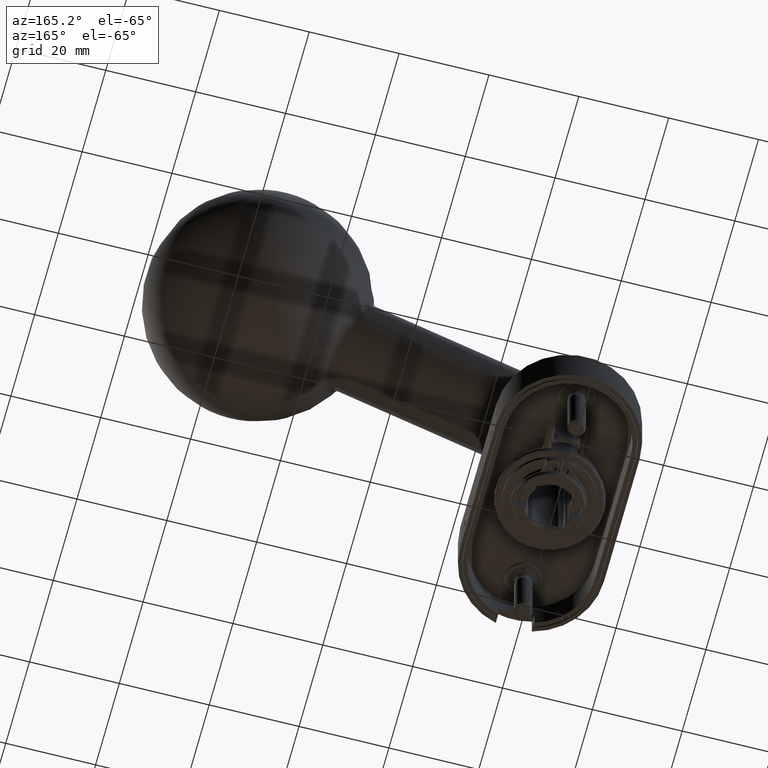
[diagram: clean part render]
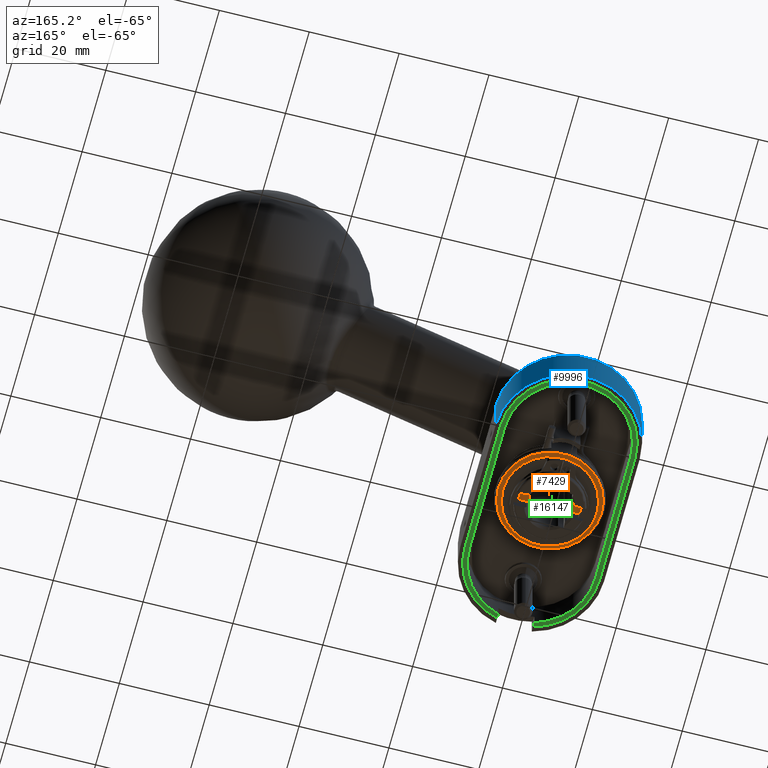
[diagram: same view with three faces highlighted in distinct colors, each labeled with its STEP entity id]
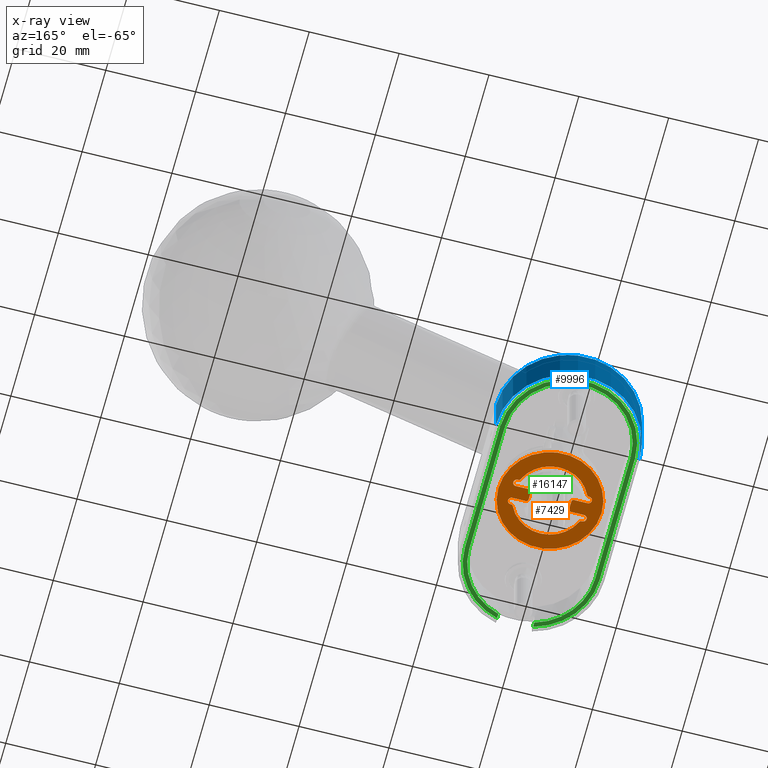
[diagram: x-ray of the same camera — body ghosted, the three highlighted faces saturated]
A machine part, auxiliary view with three faces highlighted in distinct colors.
The next image is the same camera in x-ray (body ghosted, the three faces saturated) — at least one of them is partly hidden behind the body in this view.
Their STEP definitions:

[orange] entity #7429 — the highlighted planar face has unit normal (0, 0, -1).
#11 = LINE ( 'NONE', #18576, #1583 ) ;
#185 = DIRECTION ( 'NONE',  ( 1.000000000000000000, 0.0000000000000000000, 0.0000000000000000000 ) ) ;
#356 = LINE ( 'NONE', #13812, #19565 ) ;
#502 = VERTEX_POINT ( 'NONE', #13792 ) ;
#853 = EDGE_CURVE ( 'NONE', #9252, #13674, #14266, .T. ) ;
#1027 = VECTOR ( 'NONE', #19170, 1000.000000000000000 ) ;
#1063 = CIRCLE ( 'NONE', #20202, 0.7808406967861397700 ) ;
#1136 = ORIENTED_EDGE ( 'NONE', *, *, #20974, .T. ) ;
#1216 = VERTEX_POINT ( 'NONE', #3565 ) ;
#1583 = VECTOR ( 'NONE', #8430, 1000.000000000000000 ) ;
#1642 = CARTESIAN_POINT ( 'NONE',  ( 7.396172484799129700, 3.302519125622178200, 0.9999999999999913400 ) ) ;
#2035 = CIRCLE ( 'NONE', #8360, 0.5000000000000004400 ) ;
#2041 = AXIS2_PLACEMENT_3D ( 'NONE', #17035, #6941, #8462 ) ;
#2171 = VERTEX_POINT ( 'NONE', #1642 ) ;
#2296 = DIRECTION ( 'NONE',  ( 1.000000000000000000, 0.0000000000000000000, 0.0000000000000000000 ) ) ;
#2337 = ORIENTED_EDGE ( 'NONE', *, *, #13989, .T. ) ;
#2384 = CARTESIAN_POINT ( 'NONE',  ( -7.852726341885496500, 3.506378330907501200, 0.9999999999999913400 ) ) ;
#2406 = ORIENTED_EDGE ( 'NONE', *, *, #7199, .T. ) ;
#2412 = CARTESIAN_POINT ( 'NONE',  ( 4.500000000000000900, 1.450000000000000000, 0.9999999999999913400 ) ) ;
#2679 = CARTESIAN_POINT ( 'NONE',  ( 7.898178114936007100, 3.008448480098607100, 0.9999999999999913400 ) ) ;
#2910 = CARTESIAN_POINT ( 'NONE',  ( 0.0000000000000000000, 0.0000000000000000000, 0.9999999999999913400 ) ) ;
#3014 = DIRECTION ( 'NONE',  ( -1.000000000000000000, 0.0000000000000000000, 0.0000000000000000000 ) ) ;
#3099 = CARTESIAN_POINT ( 'NONE',  ( -5.000000000000000900, 1.449999999999999700, 0.9999999999999913400 ) ) ;
#3175 = CARTESIAN_POINT ( 'NONE',  ( -5.000000000000000000, -1.450000000000000000, 0.9999999999999913400 ) ) ;
#3409 = ORIENTED_EDGE ( 'NONE', *, *, #7334, .F. ) ;
#3431 = VERTEX_POINT ( 'NONE', #16764 ) ;
#3564 = CIRCLE ( 'NONE', #7130, 0.5000000000000004400 ) ;
#3565 = CARTESIAN_POINT ( 'NONE',  ( 7.969159303213860600, 1.449999999999998400, 0.9999999999999913400 ) ) ;
#3684 = LINE ( 'NONE', #5823, #1027 ) ;
#3966 = VECTOR ( 'NONE', #14674, 1000.000000000000000 ) ;
#4085 = ORIENTED_EDGE ( 'NONE', *, *, #15269, .T. ) ;
#4426 = CIRCLE ( 'NONE', #11321, 0.4999999999999995600 ) ;
#4433 = EDGE_CURVE ( 'NONE', #3431, #9259, #15138, .T. ) ;
#4674 = CARTESIAN_POINT ( 'NONE',  ( -7.969159303213860600, 2.230840696786141800, 0.9999999999999913400 ) ) ;
#4681 = DIRECTION ( 'NONE',  ( -0.0000000000000000000, 0.0000000000000000000, 1.000000000000000000 ) ) ;
#4737 = ORIENTED_EDGE ( 'NONE', *, *, #12347, .F. ) ;
#4751 = CARTESIAN_POINT ( 'NONE',  ( 4.500000000000000000, -1.450000000000000000, 0.9999999999999913400 ) ) ;
#4856 = ORIENTED_EDGE ( 'NONE', *, *, #5453, .F. ) ;
#4873 = CARTESIAN_POINT ( 'NONE',  ( -7.969159303213858800, -1.450000000000001300, 0.9999999999999913400 ) ) ;
#4991 = ORIENTED_EDGE ( 'NONE', *, *, #12745, .F. ) ;
#5087 = VERTEX_POINT ( 'NONE', #21721 ) ;
#5349 = DIRECTION ( 'NONE',  ( -0.0000000000000000000, 0.0000000000000000000, 1.000000000000000000 ) ) ;
#5412 = VERTEX_POINT ( 'NONE', #10236 ) ;
#5415 = EDGE_CURVE ( 'NONE', #502, #13674, #16145, .T. ) ;
#5420 = DIRECTION ( 'NONE',  ( 1.000000000000000000, 0.0000000000000000000, 0.0000000000000000000 ) ) ;
#5453 = EDGE_CURVE ( 'NONE', #18020, #21527, #356, .T. ) ;
#5823 = CARTESIAN_POINT ( 'NONE',  ( 4.500000000000000900, 1.450000000000000000, 0.9999999999999913400 ) ) ;
#5921 = EDGE_CURVE ( 'NONE', #502, #17731, #20859, .T. ) ;
#6257 = DIRECTION ( 'NONE',  ( 0.0000000000000000000, 0.0000000000000000000, -1.000000000000000000 ) ) ;
#6378 = DIRECTION ( 'NONE',  ( -0.0000000000000000000, 0.0000000000000000000, 1.000000000000000000 ) ) ;
#6597 = CARTESIAN_POINT ( 'NONE',  ( 7.852726341885496500, 3.506378330907498500, 0.9999999999999913400 ) ) ;
#6613 = CARTESIAN_POINT ( 'NONE',  ( -4.500000000000000900, 1.450000000000000000, 0.9999999999999913400 ) ) ;
#6941 = DIRECTION ( 'NONE',  ( 0.0000000000000000000, 0.0000000000000000000, -1.000000000000000000 ) ) ;
#7013 = ORIENTED_EDGE ( 'NONE', *, *, #12716, .T. ) ;
#7130 = AXIS2_PLACEMENT_3D ( 'NONE', #13095, #8075, #18347 ) ;
#7199 = EDGE_CURVE ( 'NONE', #20605, #9252, #11607, .T. ) ;
#7206 = DIRECTION ( 'NONE',  ( -0.0000000000000000000, 0.0000000000000000000, 1.000000000000000000 ) ) ;
#7334 = EDGE_CURVE ( 'NONE', #20605, #13653, #13969, .T. ) ;
#7336 = CARTESIAN_POINT ( 'NONE',  ( -7.396172484799128800, 3.302519125622181300, 0.9999999999999913400 ) ) ;
#7429 = ADVANCED_FACE ( 'NONE', ( #21363, #21645 ), #19919, .T. ) ;
#7448 = EDGE_CURVE ( 'NONE', #21789, #21789, #11587, .T. ) ;
#7548 = EDGE_CURVE ( 'NONE', #2171, #18446, #17393, .T. ) ;
#7942 = DIRECTION ( 'NONE',  ( 1.000000000000000000, 0.0000000000000000000, -0.0000000000000000000 ) ) ;
#8001 = ORIENTED_EDGE ( 'NONE', *, *, #9039, .T. ) ;
#8075 = DIRECTION ( 'NONE',  ( -0.0000000000000000000, 0.0000000000000000000, 1.000000000000000000 ) ) ;
#8252 = CARTESIAN_POINT ( 'NONE',  ( 7.969159303213860600, -2.230840696786139200, 0.9999999999999913400 ) ) ;
#8360 = AXIS2_PLACEMENT_3D ( 'NONE', #8836, #15581, #5420 ) ;
#8430 = DIRECTION ( 'NONE',  ( 2.990902544787598600E-016, -1.000000000000000000, -0.0000000000000000000 ) ) ;
#8462 = DIRECTION ( 'NONE',  ( 1.000000000000000000, 0.0000000000000000000, 0.0000000000000000000 ) ) ;
#8598 = CIRCLE ( 'NONE', #9107, 0.7808406967861423200 ) ;
#8696 = AXIS2_PLACEMENT_3D ( 'NONE', #8252, #9722, #21616 ) ;
#8728 = DIRECTION ( 'NONE',  ( -0.0000000000000000000, 0.0000000000000000000, 1.000000000000000000 ) ) ;
#8770 = AXIS2_PLACEMENT_3D ( 'NONE', #20844, #7206, #2296 ) ;
#8836 = CARTESIAN_POINT ( 'NONE',  ( -5.000000000000000900, 0.9499999999999996200, 0.9999999999999913400 ) ) ;
#8849 = CIRCLE ( 'NONE', #8770, 8.100000000000001400 ) ;
#8940 = CARTESIAN_POINT ( 'NONE',  ( 7.969159303213858800, -1.450000000000000600, 0.9999999999999913400 ) ) ;
#8947 = ORIENTED_EDGE ( 'NONE', *, *, #7448, .T. ) ;
#9039 = EDGE_CURVE ( 'NONE', #17731, #21527, #1063, .T. ) ;
#9107 = AXIS2_PLACEMENT_3D ( 'NONE', #4674, #6257, #9615 ) ;
#9124 = DIRECTION ( 'NONE',  ( 1.000000000000000000, 0.0000000000000000000, 0.0000000000000000000 ) ) ;
#9252 = VERTEX_POINT ( 'NONE', #9734 ) ;
#9259 = VERTEX_POINT ( 'NONE', #3099 ) ;
#9615 = DIRECTION ( 'NONE',  ( -1.000000000000000000, 0.0000000000000000000, 0.0000000000000000000 ) ) ;
#9722 = DIRECTION ( 'NONE',  ( 0.0000000000000000000, 0.0000000000000000000, -1.000000000000000000 ) ) ;
#9734 = CARTESIAN_POINT ( 'NONE',  ( 7.898178114936007100, -3.008448480098607100, 0.9999999999999913400 ) ) ;
#9772 = DIRECTION ( 'NONE',  ( 1.000000000000000000, 0.0000000000000000000, 0.0000000000000000000 ) ) ;
#10236 = CARTESIAN_POINT ( 'NONE',  ( 5.000000000000000900, 1.449999999999999700, 0.9999999999999913400 ) ) ;
#10237 = CARTESIAN_POINT ( 'NONE',  ( -5.000000000000000000, -0.9499999999999996200, 0.9999999999999913400 ) ) ;
#10724 = CARTESIAN_POINT ( 'NONE',  ( 11.50000000000000200, 0.0000000000000000000, 0.9999999999999913400 ) ) ;
#10766 = DIRECTION ( 'NONE',  ( 1.000000000000000000, 0.0000000000000000000, 0.0000000000000000000 ) ) ;
#10952 = CIRCLE ( 'NONE', #2041, 0.7808406967861405400 ) ;
#11047 = AXIS2_PLACEMENT_3D ( 'NONE', #2384, #12662, #12744 ) ;
#11137 = CARTESIAN_POINT ( 'NONE',  ( 5.000000000000000000, -1.450000000000000000, 0.9999999999999913400 ) ) ;
#11290 = CARTESIAN_POINT ( 'NONE',  ( -4.500000000000000900, 0.9499999999999997300, 0.9999999999999913400 ) ) ;
#11321 = AXIS2_PLACEMENT_3D ( 'NONE', #10237, #5349, #12089 ) ;
#11366 = EDGE_CURVE ( 'NONE', #21430, #12872, #11, .T. ) ;
#11469 = CIRCLE ( 'NONE', #11047, 0.5000000000000013300 ) ;
#11562 = ORIENTED_EDGE ( 'NONE', *, *, #853, .T. ) ;
#11587 = CIRCLE ( 'NONE', #18499, 11.50000000000000200 ) ;
#11607 = CIRCLE ( 'NONE', #8696, 0.7808406967861397700 ) ;
#11620 = EDGE_LOOP ( 'NONE', ( #4856, #4085, #14751, #2337, #13798, #1136, #14116, #4991, #19123, #7013, #4737, #13750, #18799, #20531, #3409, #2406, #11562, #20186, #17423, #8001 ) ) ;
#11795 = VERTEX_POINT ( 'NONE', #16424 ) ;
#12089 = DIRECTION ( 'NONE',  ( 1.000000000000000000, 0.0000000000000000000, 0.0000000000000000000 ) ) ;
#12347 = EDGE_CURVE ( 'NONE', #5412, #1216, #3684, .T. ) ;
#12491 = CARTESIAN_POINT ( 'NONE',  ( 7.852726341885496500, -3.506378330907498500, 0.9999999999999913400 ) ) ;
#12662 = DIRECTION ( 'NONE',  ( -0.0000000000000000000, 0.0000000000000000000, 1.000000000000000000 ) ) ;
#12716 = EDGE_CURVE ( 'NONE', #18446, #1216, #10952, .T. ) ;
#12744 = DIRECTION ( 'NONE',  ( 1.000000000000000000, 0.0000000000000000000, 0.0000000000000000000 ) ) ;
#12745 = EDGE_CURVE ( 'NONE', #2171, #12747, #8849, .T. ) ;
#12747 = VERTEX_POINT ( 'NONE', #7336 ) ;
#12872 = VERTEX_POINT ( 'NONE', #19088 ) ;
#13095 = CARTESIAN_POINT ( 'NONE',  ( 5.000000000000000900, 0.9499999999999996200, 0.9999999999999913400 ) ) ;
#13325 = EDGE_CURVE ( 'NONE', #16912, #13653, #18126, .T. ) ;
#13328 = AXIS2_PLACEMENT_3D ( 'NONE', #18509, #16740, #185 ) ;
#13371 = CARTESIAN_POINT ( 'NONE',  ( 4.500000000000000000, -0.9499999999999998400, 0.9999999999999913400 ) ) ;
#13653 = VERTEX_POINT ( 'NONE', #11137 ) ;
#13674 = VERTEX_POINT ( 'NONE', #16362 ) ;
#13750 = ORIENTED_EDGE ( 'NONE', *, *, #19034, .T. ) ;
#13792 = CARTESIAN_POINT ( 'NONE',  ( -7.396172484799130600, -3.302519125622175100, 0.9999999999999913400 ) ) ;
#13798 = ORIENTED_EDGE ( 'NONE', *, *, #4433, .F. ) ;
#13812 = CARTESIAN_POINT ( 'NONE',  ( -4.500000000000000000, -1.450000000000000000, 0.9999999999999913400 ) ) ;
#13969 = LINE ( 'NONE', #4751, #3966 ) ;
#13989 = EDGE_CURVE ( 'NONE', #21430, #9259, #2035, .T. ) ;
#14116 = ORIENTED_EDGE ( 'NONE', *, *, #16279, .T. ) ;
#14266 = CIRCLE ( 'NONE', #19857, 0.5000000000000004400 ) ;
#14674 = DIRECTION ( 'NONE',  ( -1.000000000000000000, 1.875155467460529500E-016, 0.0000000000000000000 ) ) ;
#14751 = ORIENTED_EDGE ( 'NONE', *, *, #11366, .F. ) ;
#14877 = DIRECTION ( 'NONE',  ( -1.000000000000000000, 0.0000000000000000000, 0.0000000000000000000 ) ) ;
#15138 = LINE ( 'NONE', #6613, #19068 ) ;
#15269 = EDGE_CURVE ( 'NONE', #18020, #12872, #4426, .T. ) ;
#15372 = DIRECTION ( 'NONE',  ( -0.0000000000000000000, 0.0000000000000000000, 1.000000000000000000 ) ) ;
#15581 = DIRECTION ( 'NONE',  ( -0.0000000000000000000, 0.0000000000000000000, 1.000000000000000000 ) ) ;
#15955 = CARTESIAN_POINT ( 'NONE',  ( -7.969159303213860600, -2.230840696786136500, 0.9999999999999913400 ) ) ;
#15965 = EDGE_CURVE ( 'NONE', #16912, #5087, #21526, .T. ) ;
#16040 = DIRECTION ( 'NONE',  ( 2.990902544787598600E-016, 1.000000000000000000, 0.0000000000000000000 ) ) ;
#16062 = AXIS2_PLACEMENT_3D ( 'NONE', #16256, #18235, #3014 ) ;
#16145 = CIRCLE ( 'NONE', #20176, 8.099999999999999600 ) ;
#16193 = EDGE_LOOP ( 'NONE', ( #8947 ) ) ;
#16256 = CARTESIAN_POINT ( 'NONE',  ( -7.852726341885496500, -3.506378330907495800, 0.9999999999999913400 ) ) ;
#16279 = EDGE_CURVE ( 'NONE', #11795, #12747, #11469, .T. ) ;
#16362 = CARTESIAN_POINT ( 'NONE',  ( 7.396172484799129700, -3.302519125622178200, 0.9999999999999913400 ) ) ;
#16424 = CARTESIAN_POINT ( 'NONE',  ( -7.898178114936007100, 3.008448480098611100, 0.9999999999999913400 ) ) ;
#16740 = DIRECTION ( 'NONE',  ( -0.0000000000000000000, 0.0000000000000000000, 1.000000000000000000 ) ) ;
#16764 = CARTESIAN_POINT ( 'NONE',  ( -7.969159303213860600, 1.449999999999998400, 0.9999999999999913400 ) ) ;
#16912 = VERTEX_POINT ( 'NONE', #13371 ) ;
#17035 = CARTESIAN_POINT ( 'NONE',  ( 7.969159303213860600, 2.230840696786139200, 0.9999999999999913400 ) ) ;
#17393 = CIRCLE ( 'NONE', #20733, 0.5000000000000004400 ) ;
#17423 = ORIENTED_EDGE ( 'NONE', *, *, #5921, .T. ) ;
#17731 = VERTEX_POINT ( 'NONE', #19653 ) ;
#17793 = DIRECTION ( 'NONE',  ( 0.0000000000000000000, 0.0000000000000000000, -1.000000000000000000 ) ) ;
#17983 = DIRECTION ( 'NONE',  ( 0.0000000000000000000, 0.0000000000000000000, 1.000000000000000000 ) ) ;
#18020 = VERTEX_POINT ( 'NONE', #3175 ) ;
#18064 = CARTESIAN_POINT ( 'NONE',  ( 0.0000000000000000000, 0.0000000000000000000, 0.9999999999999913400 ) ) ;
#18101 = VECTOR ( 'NONE', #16040, 1000.000000000000000 ) ;
#18126 = CIRCLE ( 'NONE', #13328, 0.4999999999999995600 ) ;
#18235 = DIRECTION ( 'NONE',  ( -0.0000000000000000000, 0.0000000000000000000, 1.000000000000000000 ) ) ;
#18347 = DIRECTION ( 'NONE',  ( 1.000000000000000000, 0.0000000000000000000, 0.0000000000000000000 ) ) ;
#18446 = VERTEX_POINT ( 'NONE', #2679 ) ;
#18499 = AXIS2_PLACEMENT_3D ( 'NONE', #2910, #4681, #9772 ) ;
#18509 = CARTESIAN_POINT ( 'NONE',  ( 5.000000000000000000, -0.9499999999999999600, 0.9999999999999913400 ) ) ;
#18554 = CARTESIAN_POINT ( 'NONE',  ( 0.0000000000000000000, 0.0000000000000000000, 0.9999999999999913400 ) ) ;
#18576 = CARTESIAN_POINT ( 'NONE',  ( -4.500000000000000900, 1.450000000000000000, 0.9999999999999913400 ) ) ;
#18703 = DIRECTION ( 'NONE',  ( 1.000000000000000000, 4.375362757407899800E-016, 0.0000000000000000000 ) ) ;
#18758 = DIRECTION ( 'NONE',  ( 1.000000000000000000, 0.0000000000000000000, 0.0000000000000000000 ) ) ;
#18799 = ORIENTED_EDGE ( 'NONE', *, *, #15965, .F. ) ;
#18839 = DIRECTION ( 'NONE',  ( -1.000000000000000000, -1.875155467460529500E-016, 0.0000000000000000000 ) ) ;
#19034 = EDGE_CURVE ( 'NONE', #5412, #5087, #3564, .T. ) ;
#19068 = VECTOR ( 'NONE', #18703, 1000.000000000000000 ) ;
#19088 = CARTESIAN_POINT ( 'NONE',  ( -4.500000000000000000, -0.9499999999999995100, 0.9999999999999913400 ) ) ;
#19123 = ORIENTED_EDGE ( 'NONE', *, *, #7548, .T. ) ;
#19170 = DIRECTION ( 'NONE',  ( 1.000000000000000000, -4.375362757407899800E-016, -0.0000000000000000000 ) ) ;
#19565 = VECTOR ( 'NONE', #18839, 1000.000000000000000 ) ;
#19653 = CARTESIAN_POINT ( 'NONE',  ( -7.898178114936007100, -3.008448480098604900, 0.9999999999999913400 ) ) ;
#19857 = AXIS2_PLACEMENT_3D ( 'NONE', #12491, #8728, #10766 ) ;
#19919 = PLANE ( 'NONE',  #21591 ) ;
#20176 = AXIS2_PLACEMENT_3D ( 'NONE', #18554, #15372, #18758 ) ;
#20186 = ORIENTED_EDGE ( 'NONE', *, *, #5415, .F. ) ;
#20202 = AXIS2_PLACEMENT_3D ( 'NONE', #15955, #17793, #9124 ) ;
#20531 = ORIENTED_EDGE ( 'NONE', *, *, #13325, .T. ) ;
#20605 = VERTEX_POINT ( 'NONE', #8940 ) ;
#20733 = AXIS2_PLACEMENT_3D ( 'NONE', #6597, #6378, #14877 ) ;
#20844 = CARTESIAN_POINT ( 'NONE',  ( 0.0000000000000000000, 0.0000000000000000000, 0.9999999999999913400 ) ) ;
#20859 = CIRCLE ( 'NONE', #16062, 0.5000000000000004400 ) ;
#20974 = EDGE_CURVE ( 'NONE', #3431, #11795, #8598, .T. ) ;
#21363 = FACE_BOUND ( 'NONE', #11620, .T. ) ;
#21430 = VERTEX_POINT ( 'NONE', #11290 ) ;
#21526 = LINE ( 'NONE', #2412, #18101 ) ;
#21527 = VERTEX_POINT ( 'NONE', #4873 ) ;
#21591 = AXIS2_PLACEMENT_3D ( 'NONE', #18064, #17983, #7942 ) ;
#21616 = DIRECTION ( 'NONE',  ( -1.000000000000000000, 0.0000000000000000000, 0.0000000000000000000 ) ) ;
#21645 = FACE_OUTER_BOUND ( 'NONE', #16193, .T. ) ;
#21721 = CARTESIAN_POINT ( 'NONE',  ( 4.500000000000000900, 0.9499999999999997300, 0.9999999999999913400 ) ) ;
#21789 = VERTEX_POINT ( 'NONE', #10724 ) ;

[blue] entity #9996 — the highlighted cylindrical surface (partial cylindrical patch) has radius 16 mm, axis along (0, 0, 1).
#123 = CARTESIAN_POINT ( 'NONE',  ( -4.400605526280645800E-015, 14.99999999999999600, -0.5000000000000004400 ) ) ;
#658 = CARTESIAN_POINT ( 'NONE',  ( -16.00000000000001400, 14.99999999999998400, -10.49999999999999500 ) ) ;
#739 = DIRECTION ( 'NONE',  ( 1.000000000000000000, 0.0000000000000000000, 0.0000000000000000000 ) ) ;
#875 = AXIS2_PLACEMENT_3D ( 'NONE', #123, #13700, #10207 ) ;
#1030 = CARTESIAN_POINT ( 'NONE',  ( 16.00000000000001400, 14.99999999999998800, -0.5000000000000004400 ) ) ;
#1568 = AXIS2_PLACEMENT_3D ( 'NONE', #4117, #19201, #739 ) ;
#3483 = ORIENTED_EDGE ( 'NONE', *, *, #11500, .F. ) ;
#3726 = FACE_OUTER_BOUND ( 'NONE', #11439, .T. ) ;
#4117 = CARTESIAN_POINT ( 'NONE',  ( -4.400605526280645800E-015, 14.99999999999999600, -10.49999999999999500 ) ) ;
#4965 = DIRECTION ( 'NONE',  ( 1.000000000000000000, 0.0000000000000000000, 0.0000000000000000000 ) ) ;
#5759 = VECTOR ( 'NONE', #12603, 1000.000000000000000 ) ;
#6593 = EDGE_CURVE ( 'NONE', #16660, #7822, #7914, .T. ) ;
#7327 = LINE ( 'NONE', #658, #5759 ) ;
#7383 = ORIENTED_EDGE ( 'NONE', *, *, #10349, .T. ) ;
#7707 = VERTEX_POINT ( 'NONE', #15504 ) ;
#7822 = VERTEX_POINT ( 'NONE', #17917 ) ;
#7914 = CIRCLE ( 'NONE', #1568, 16.00000000000001400 ) ;
#9996 = ADVANCED_FACE ( 'NONE', ( #3726 ), #20043, .T. ) ;
#10207 = DIRECTION ( 'NONE',  ( 1.000000000000000000, 0.0000000000000000000, 0.0000000000000000000 ) ) ;
#10232 = VERTEX_POINT ( 'NONE', #1030 ) ;
#10349 = EDGE_CURVE ( 'NONE', #7707, #10232, #15550, .T. ) ;
#10704 = LINE ( 'NONE', #15528, #20022 ) ;
#10851 = ORIENTED_EDGE ( 'NONE', *, *, #6593, .T. ) ;
#10860 = CARTESIAN_POINT ( 'NONE',  ( 16.00000000000001400, 14.99999999999998800, -10.49999999999999500 ) ) ;
#11011 = EDGE_CURVE ( 'NONE', #7822, #7707, #7327, .T. ) ;
#11180 = ORIENTED_EDGE ( 'NONE', *, *, #11011, .T. ) ;
#11439 = EDGE_LOOP ( 'NONE', ( #11180, #7383, #3483, #10851 ) ) ;
#11500 = EDGE_CURVE ( 'NONE', #16660, #10232, #10704, .T. ) ;
#12177 = DIRECTION ( 'NONE',  ( 0.0000000000000000000, 0.0000000000000000000, 1.000000000000000000 ) ) ;
#12603 = DIRECTION ( 'NONE',  ( 0.0000000000000000000, 0.0000000000000000000, 1.000000000000000000 ) ) ;
#13700 = DIRECTION ( 'NONE',  ( -0.0000000000000000000, -0.0000000000000000000, -1.000000000000000000 ) ) ;
#15052 = DIRECTION ( 'NONE',  ( 0.0000000000000000000, 0.0000000000000000000, 1.000000000000000000 ) ) ;
#15504 = CARTESIAN_POINT ( 'NONE',  ( -16.00000000000001400, 14.99999999999998400, -0.5000000000000004400 ) ) ;
#15528 = CARTESIAN_POINT ( 'NONE',  ( 16.00000000000001400, 14.99999999999998800, -10.49999999999999500 ) ) ;
#15550 = CIRCLE ( 'NONE', #875, 16.00000000000001400 ) ;
#16660 = VERTEX_POINT ( 'NONE', #10860 ) ;
#17917 = CARTESIAN_POINT ( 'NONE',  ( -16.00000000000001400, 14.99999999999998400, -10.49999999999999500 ) ) ;
#18297 = CARTESIAN_POINT ( 'NONE',  ( -4.400605526280645800E-015, 14.99999999999999600, -10.49999999999999500 ) ) ;
#19201 = DIRECTION ( 'NONE',  ( 0.0000000000000000000, 0.0000000000000000000, 1.000000000000000000 ) ) ;
#20022 = VECTOR ( 'NONE', #12177, 1000.000000000000000 ) ;
#20043 = CYLINDRICAL_SURFACE ( 'NONE', #21621, 16.00000000000001400 ) ;
#21621 = AXIS2_PLACEMENT_3D ( 'NONE', #18297, #15052, #4965 ) ;

[green] entity #16147 — the highlighted planar face has unit normal (0, 0, -1).
#7 = LINE ( 'NONE', #21190, #17127 ) ;
#47 = LINE ( 'NONE', #6553, #548 ) ;
#331 = ORIENTED_EDGE ( 'NONE', *, *, #959, .T. ) ;
#548 = VECTOR ( 'NONE', #20261, 1000.000000000000000 ) ;
#654 = DIRECTION ( 'NONE',  ( 0.0000000000000000000, 0.0000000000000000000, 1.000000000000000000 ) ) ;
#746 = LINE ( 'NONE', #11559, #10680 ) ;
#934 = ORIENTED_EDGE ( 'NONE', *, *, #2193, .T. ) ;
#959 = EDGE_CURVE ( 'NONE', #8165, #17325, #17406, .T. ) ;
#1052 = VERTEX_POINT ( 'NONE', #8959 ) ;
#1242 = LINE ( 'NONE', #4893, #8571 ) ;
#1268 = DIRECTION ( 'NONE',  ( -1.000000000000000000, 0.0000000000000000000, 0.0000000000000000000 ) ) ;
#1799 = CARTESIAN_POINT ( 'NONE',  ( -4.000000000000000000, -28.31640786499874500, 0.0000000000000000000 ) ) ;
#2144 = VECTOR ( 'NONE', #17326, 1000.000000000000000 ) ;
#2193 = EDGE_CURVE ( 'NONE', #10761, #3975, #47, .T. ) ;
#2217 = CIRCLE ( 'NONE', #13093, 14.00000000000000500 ) ;
#2621 = AXIS2_PLACEMENT_3D ( 'NONE', #3358, #9852, #9699 ) ;
#2743 = VERTEX_POINT ( 'NONE', #8866 ) ;
#2802 = DIRECTION ( 'NONE',  ( -0.0000000000000000000, 1.000000000000000000, -0.0000000000000000000 ) ) ;
#3358 = CARTESIAN_POINT ( 'NONE',  ( 1.734723475976807100E-015, 14.90000000000000000, 0.0000000000000000000 ) ) ;
#3811 = ORIENTED_EDGE ( 'NONE', *, *, #7259, .F. ) ;
#3844 = VERTEX_POINT ( 'NONE', #17903 ) ;
#3975 = VERTEX_POINT ( 'NONE', #6495 ) ;
#4039 = ORIENTED_EDGE ( 'NONE', *, *, #9082, .F. ) ;
#4166 = CARTESIAN_POINT ( 'NONE',  ( 15.00000000000000700, 14.90000000000000200, 0.0000000000000000000 ) ) ;
#4245 = DIRECTION ( 'NONE',  ( -1.000000000000000000, 0.0000000000000000000, 0.0000000000000000000 ) ) ;
#4375 = EDGE_CURVE ( 'NONE', #7473, #8165, #2217, .T. ) ;
#4676 = AXIS2_PLACEMENT_3D ( 'NONE', #12940, #21350, #19815 ) ;
#4772 = CARTESIAN_POINT ( 'NONE',  ( 15.00000000000000500, 14.89999999999999900, 0.0000000000000000000 ) ) ;
#4893 = CARTESIAN_POINT ( 'NONE',  ( -15.00000000000000500, -14.89999999999999900, 0.0000000000000000000 ) ) ;
#4949 = DIRECTION ( 'NONE',  ( 0.0000000000000000000, 0.0000000000000000000, 1.000000000000000000 ) ) ;
#4963 = CIRCLE ( 'NONE', #19257, 14.00000000000000500 ) ;
#5447 = AXIS2_PLACEMENT_3D ( 'NONE', #13808, #5684, #7510 ) ;
#5472 = CARTESIAN_POINT ( 'NONE',  ( 14.00000000000000500, -14.90000000000000000, 0.0000000000000000000 ) ) ;
#5683 = EDGE_LOOP ( 'NONE', ( #16980, #4039, #19828, #13691, #3811, #11640, #20249, #13334, #331, #13942, #934, #20300 ) ) ;
#5684 = DIRECTION ( 'NONE',  ( -0.0000000000000000000, 0.0000000000000000000, -1.000000000000000000 ) ) ;
#5734 = VERTEX_POINT ( 'NONE', #4166 ) ;
#6495 = CARTESIAN_POINT ( 'NONE',  ( -14.00000000000000400, -14.89999999999999900, 0.0000000000000000000 ) ) ;
#6553 = CARTESIAN_POINT ( 'NONE',  ( -14.00000000000000500, -14.90000000000000000, 0.0000000000000000000 ) ) ;
#7259 = EDGE_CURVE ( 'NONE', #3844, #5734, #7627, .T. ) ;
#7473 = VERTEX_POINT ( 'NONE', #11578 ) ;
#7510 = DIRECTION ( 'NONE',  ( -1.000000000000000000, 0.0000000000000000000, 0.0000000000000000000 ) ) ;
#7627 = LINE ( 'NONE', #4772, #17141 ) ;
#7800 = CIRCLE ( 'NONE', #4676, 15.00000000000000500 ) ;
#7959 = VERTEX_POINT ( 'NONE', #1799 ) ;
#8165 = VERTEX_POINT ( 'NONE', #13628 ) ;
#8571 = VECTOR ( 'NONE', #18143, 1000.000000000000000 ) ;
#8655 = CIRCLE ( 'NONE', #10800, 15.00000000000000500 ) ;
#8866 = CARTESIAN_POINT ( 'NONE',  ( 4.000000000000000000, -29.35683229480096700, 0.0000000000000000000 ) ) ;
#8959 = CARTESIAN_POINT ( 'NONE',  ( -15.00000000000000500, 14.89999999999999900, 0.0000000000000000000 ) ) ;
#9082 = EDGE_CURVE ( 'NONE', #16939, #17707, #8655, .T. ) ;
#9699 = DIRECTION ( 'NONE',  ( -1.000000000000000000, 0.0000000000000000000, 0.0000000000000000000 ) ) ;
#9794 = DIRECTION ( 'NONE',  ( -0.0000000000000000000, 1.000000000000000000, -0.0000000000000000000 ) ) ;
#9852 = DIRECTION ( 'NONE',  ( 0.0000000000000000000, 0.0000000000000000000, 1.000000000000000000 ) ) ;
#10221 = EDGE_CURVE ( 'NONE', #2743, #7473, #7, .T. ) ;
#10269 = AXIS2_PLACEMENT_3D ( 'NONE', #13246, #11384, #1268 ) ;
#10387 = CARTESIAN_POINT ( 'NONE',  ( 1.734723475976807100E-015, 14.90000000000000000, 0.0000000000000000000 ) ) ;
#10680 = VECTOR ( 'NONE', #9794, 1000.000000000000000 ) ;
#10707 = EDGE_CURVE ( 'NONE', #3975, #7959, #12073, .T. ) ;
#10761 = VERTEX_POINT ( 'NONE', #18131 ) ;
#10800 = AXIS2_PLACEMENT_3D ( 'NONE', #15871, #654, #4245 ) ;
#11384 = DIRECTION ( 'NONE',  ( 0.0000000000000000000, 0.0000000000000000000, 1.000000000000000000 ) ) ;
#11559 = CARTESIAN_POINT ( 'NONE',  ( -4.000000000000000000, -29.90000000000000200, 0.0000000000000000000 ) ) ;
#11578 = CARTESIAN_POINT ( 'NONE',  ( 4.000000000000000000, -28.31640786499874500, 0.0000000000000000000 ) ) ;
#11640 = ORIENTED_EDGE ( 'NONE', *, *, #21405, .F. ) ;
#12073 = CIRCLE ( 'NONE', #10269, 14.00000000000000500 ) ;
#12924 = CARTESIAN_POINT ( 'NONE',  ( -4.000000000000000000, -29.35683229480096300, 0.0000000000000000000 ) ) ;
#12940 = CARTESIAN_POINT ( 'NONE',  ( 1.734723475976807100E-015, -14.90000000000000000, 0.0000000000000000000 ) ) ;
#13078 = FACE_OUTER_BOUND ( 'NONE', #5683, .T. ) ;
#13093 = AXIS2_PLACEMENT_3D ( 'NONE', #19968, #4949, #18050 ) ;
#13246 = CARTESIAN_POINT ( 'NONE',  ( 1.734723475976807100E-015, -14.90000000000000000, 0.0000000000000000000 ) ) ;
#13334 = ORIENTED_EDGE ( 'NONE', *, *, #4375, .T. ) ;
#13628 = CARTESIAN_POINT ( 'NONE',  ( 14.00000000000000500, -14.89999999999999900, 0.0000000000000000000 ) ) ;
#13691 = ORIENTED_EDGE ( 'NONE', *, *, #14489, .F. ) ;
#13732 = DIRECTION ( 'NONE',  ( -1.000000000000000000, 0.0000000000000000000, 0.0000000000000000000 ) ) ;
#13808 = CARTESIAN_POINT ( 'NONE',  ( 1.734723475976807100E-015, -14.90000000000000000, 0.0000000000000000000 ) ) ;
#13929 = CIRCLE ( 'NONE', #2621, 15.00000000000000500 ) ;
#13942 = ORIENTED_EDGE ( 'NONE', *, *, #15241, .T. ) ;
#14214 = CARTESIAN_POINT ( 'NONE',  ( 14.00000000000000700, 14.90000000000000200, 0.0000000000000000000 ) ) ;
#14421 = EDGE_CURVE ( 'NONE', #1052, #16939, #1242, .T. ) ;
#14489 = EDGE_CURVE ( 'NONE', #5734, #1052, #13929, .T. ) ;
#14855 = CARTESIAN_POINT ( 'NONE',  ( -15.00000000000000500, -14.89999999999999900, 0.0000000000000000000 ) ) ;
#15241 = EDGE_CURVE ( 'NONE', #17325, #10761, #4963, .T. ) ;
#15871 = CARTESIAN_POINT ( 'NONE',  ( 1.734723475976807100E-015, -14.90000000000000000, 0.0000000000000000000 ) ) ;
#16147 = ADVANCED_FACE ( 'NONE', ( #13078 ), #16201, .T. ) ;
#16201 = PLANE ( 'NONE',  #5447 ) ;
#16618 = DIRECTION ( 'NONE',  ( -0.0000000000000000000, 1.000000000000000000, -0.0000000000000000000 ) ) ;
#16939 = VERTEX_POINT ( 'NONE', #14855 ) ;
#16980 = ORIENTED_EDGE ( 'NONE', *, *, #20309, .F. ) ;
#17127 = VECTOR ( 'NONE', #2802, 1000.000000000000000 ) ;
#17141 = VECTOR ( 'NONE', #16618, 1000.000000000000000 ) ;
#17196 = DIRECTION ( 'NONE',  ( 0.0000000000000000000, 0.0000000000000000000, 1.000000000000000000 ) ) ;
#17325 = VERTEX_POINT ( 'NONE', #14214 ) ;
#17326 = DIRECTION ( 'NONE',  ( 0.0000000000000000000, 1.000000000000000000, 0.0000000000000000000 ) ) ;
#17406 = LINE ( 'NONE', #5472, #2144 ) ;
#17707 = VERTEX_POINT ( 'NONE', #12924 ) ;
#17903 = CARTESIAN_POINT ( 'NONE',  ( 15.00000000000000500, -14.89999999999999900, 0.0000000000000000000 ) ) ;
#18050 = DIRECTION ( 'NONE',  ( -1.000000000000000000, 0.0000000000000000000, 0.0000000000000000000 ) ) ;
#18131 = CARTESIAN_POINT ( 'NONE',  ( -14.00000000000000500, 14.89999999999999900, 0.0000000000000000000 ) ) ;
#18143 = DIRECTION ( 'NONE',  ( -0.0000000000000000000, -1.000000000000000000, -0.0000000000000000000 ) ) ;
#19257 = AXIS2_PLACEMENT_3D ( 'NONE', #10387, #17196, #13732 ) ;
#19815 = DIRECTION ( 'NONE',  ( -1.000000000000000000, 0.0000000000000000000, 0.0000000000000000000 ) ) ;
#19828 = ORIENTED_EDGE ( 'NONE', *, *, #14421, .F. ) ;
#19968 = CARTESIAN_POINT ( 'NONE',  ( 1.734723475976807100E-015, -14.90000000000000000, 0.0000000000000000000 ) ) ;
#20249 = ORIENTED_EDGE ( 'NONE', *, *, #10221, .T. ) ;
#20261 = DIRECTION ( 'NONE',  ( 0.0000000000000000000, -1.000000000000000000, 0.0000000000000000000 ) ) ;
#20300 = ORIENTED_EDGE ( 'NONE', *, *, #10707, .T. ) ;
#20309 = EDGE_CURVE ( 'NONE', #17707, #7959, #746, .T. ) ;
#21190 = CARTESIAN_POINT ( 'NONE',  ( 4.000000000000000000, -29.90000000000000200, 0.0000000000000000000 ) ) ;
#21350 = DIRECTION ( 'NONE',  ( 0.0000000000000000000, 0.0000000000000000000, 1.000000000000000000 ) ) ;
#21405 = EDGE_CURVE ( 'NONE', #2743, #3844, #7800, .T. ) ;